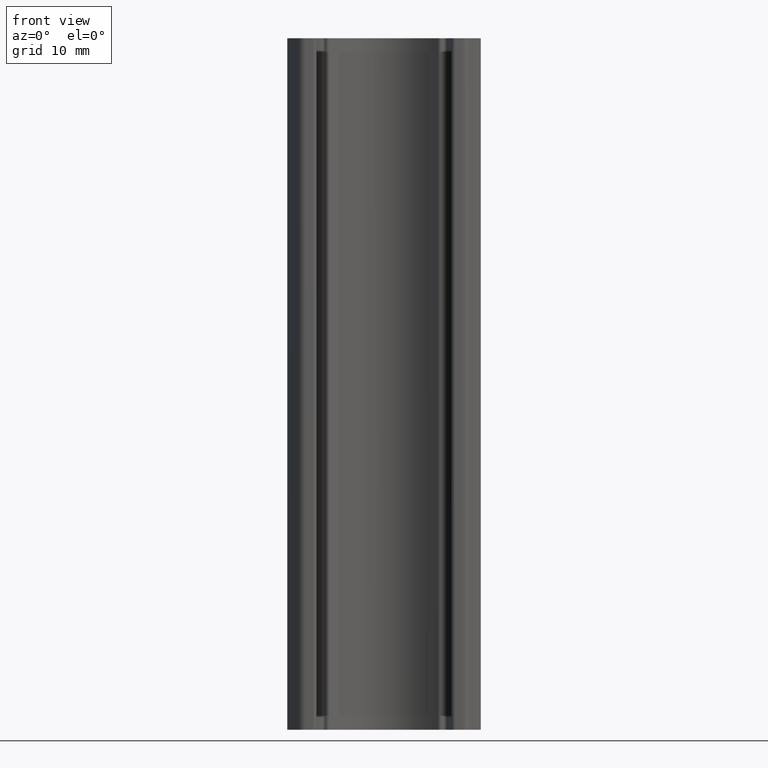
[diagram: clean part render]
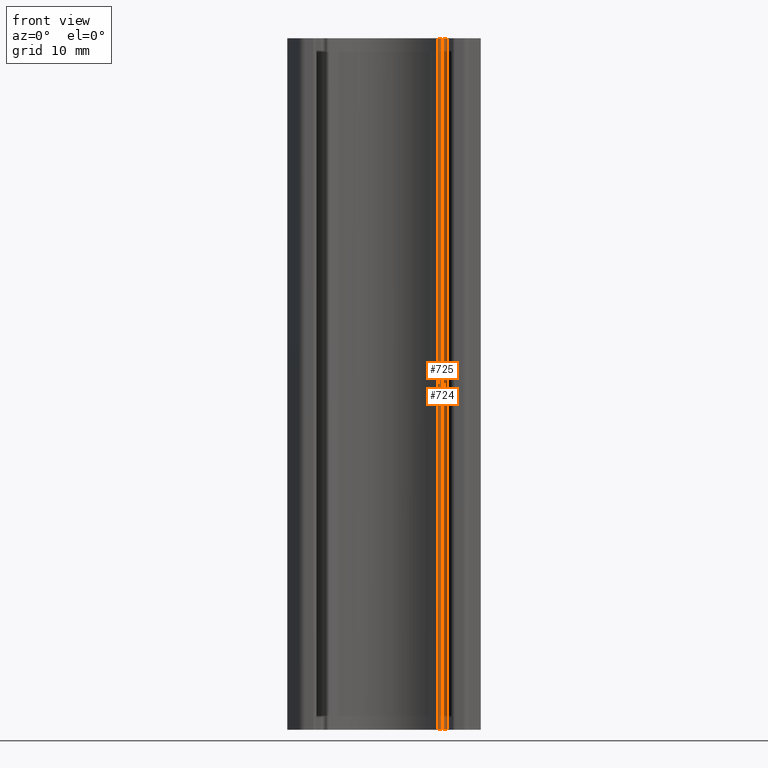
[diagram: same view with one multi-face feature highlighted, each face labeled with its STEP entity id]
A machine part, front view. The highlighted faces form ONE feature: a constant-radius fillet chain: 2 tangent blend faces with common blend radius 0.5 mm. The faces share edges in the B-rep.
Their STEP definitions:
[1] entity #724 (Cylinder):
#61=FACE_OUTER_BOUND('',#99,.T.);
#99=EDGE_LOOP('',(#582,#583,#584,#585));
#159=LINE('',#1256,#217);
#160=LINE('',#1262,#218);
#217=VECTOR('',#1030,100.);
#218=VECTOR('',#1037,100.);
#264=CIRCLE('',#809,0.499999999998);
#265=CIRCLE('',#810,0.499999999998);
#336=VERTEX_POINT('',#1252);
#337=VERTEX_POINT('',#1254);
#338=VERTEX_POINT('',#1258);
#339=VERTEX_POINT('',#1260);
#441=EDGE_CURVE('',#336,#337,#159,.T.);
#442=EDGE_CURVE('',#336,#338,#264,.T.);
#443=EDGE_CURVE('',#339,#337,#265,.T.);
#444=EDGE_CURVE('',#338,#339,#160,.T.);
#582=ORIENTED_EDGE('',*,*,#442,.F.);
#583=ORIENTED_EDGE('',*,*,#441,.T.);
#584=ORIENTED_EDGE('',*,*,#443,.F.);
#585=ORIENTED_EDGE('',*,*,#444,.F.);
#688=CYLINDRICAL_SURFACE('',#808,0.499999999998);
#724=ADVANCED_FACE('',(#61),#688,.F.);
#808=AXIS2_PLACEMENT_3D('',#1257,#1031,#1032);
#809=AXIS2_PLACEMENT_3D('',#1259,#1033,#1034);
#810=AXIS2_PLACEMENT_3D('',#1261,#1035,#1036);
#1030=DIRECTION('',(0.,0.,1.));
#1031=DIRECTION('center_axis',(0.,0.,1.));
#1032=DIRECTION('ref_axis',(0.831857136393482,0.554989823898813,0.));
#1033=DIRECTION('center_axis',(0.,0.,1.));
#1034=DIRECTION('ref_axis',(0.831857136393482,0.554989823898813,0.));
#1035=DIRECTION('center_axis',(0.,0.,-1.));
#1036=DIRECTION('ref_axis',(0.831857136393482,0.554989823898813,0.));
#1037=DIRECTION('',(0.,0.,1.));
#1252=CARTESIAN_POINT('',(9.15042850028913,6.10488806286757,0.));
#1254=CARTESIAN_POINT('',(9.15042850028913,6.10488806286757,100.));
#1256=CARTESIAN_POINT('',(9.15042850028913,6.10488806286757,0.));
#1257=CARTESIAN_POINT('Origin',(8.7344999320938,5.82739315091911,0.));
#1258=CARTESIAN_POINT('',(8.43751369648981,6.2296358337119,0.));
#1259=CARTESIAN_POINT('Origin',(8.7344999320938,5.82739315091911,0.));
#1260=CARTESIAN_POINT('',(8.43751369648981,6.2296358337119,100.));
#1261=CARTESIAN_POINT('Origin',(8.7344999320938,5.82739315091911,100.));
#1262=CARTESIAN_POINT('',(8.43751369648981,6.2296358337119,0.));
[2] entity #725 (Cylinder):
#62=FACE_OUTER_BOUND('',#100,.T.);
#100=EDGE_LOOP('',(#586,#587,#588,#589));
#160=LINE('',#1262,#218);
#161=LINE('',#1268,#219);
#218=VECTOR('',#1037,100.);
#219=VECTOR('',#1044,100.);
#266=CIRCLE('',#812,0.499999999998);
#267=CIRCLE('',#813,0.499999999998);
#338=VERTEX_POINT('',#1258);
#339=VERTEX_POINT('',#1260);
#340=VERTEX_POINT('',#1264);
#341=VERTEX_POINT('',#1266);
#444=EDGE_CURVE('',#338,#339,#160,.T.);
#445=EDGE_CURVE('',#338,#340,#266,.T.);
#446=EDGE_CURVE('',#341,#339,#267,.T.);
#447=EDGE_CURVE('',#340,#341,#161,.T.);
#586=ORIENTED_EDGE('',*,*,#445,.F.);
#587=ORIENTED_EDGE('',*,*,#444,.T.);
#588=ORIENTED_EDGE('',*,*,#446,.F.);
#589=ORIENTED_EDGE('',*,*,#447,.F.);
#689=CYLINDRICAL_SURFACE('',#811,0.499999999998);
#725=ADVANCED_FACE('',(#62),#689,.T.);
#811=AXIS2_PLACEMENT_3D('',#1263,#1038,#1039);
#812=AXIS2_PLACEMENT_3D('',#1265,#1040,#1041);
#813=AXIS2_PLACEMENT_3D('',#1267,#1042,#1043);
#1037=DIRECTION('',(0.,0.,1.));
#1038=DIRECTION('center_axis',(0.,0.,1.));
#1039=DIRECTION('ref_axis',(0.775288329611104,0.631607477765126,0.));
#1040=DIRECTION('center_axis',(0.,0.,-1.));
#1041=DIRECTION('ref_axis',(0.775288329611104,0.631607477765126,0.));
#1042=DIRECTION('center_axis',(0.,0.,1.));
#1043=DIRECTION('ref_axis',(0.775288329611104,0.631607477765126,0.));
#1044=DIRECTION('',(0.,0.,1.));
#1258=CARTESIAN_POINT('',(8.43751369648981,6.2296358337119,0.));
#1260=CARTESIAN_POINT('',(8.43751369648981,6.2296358337119,100.));
#1262=CARTESIAN_POINT('',(8.43751369648981,6.2296358337119,0.));
#1263=CARTESIAN_POINT('Origin',(8.14052746088672,6.63187851650424,0.));
#1264=CARTESIAN_POINT('',(7.75288329608229,6.31607477762259,0.));
#1265=CARTESIAN_POINT('Origin',(8.14052746088672,6.63187851650424,0.));
#1266=CARTESIAN_POINT('',(7.75288329608229,6.31607477762259,100.));
#1267=CARTESIAN_POINT('Origin',(8.14052746088672,6.63187851650424,100.));
#1268=CARTESIAN_POINT('',(7.75288329608229,6.31607477762259,0.));